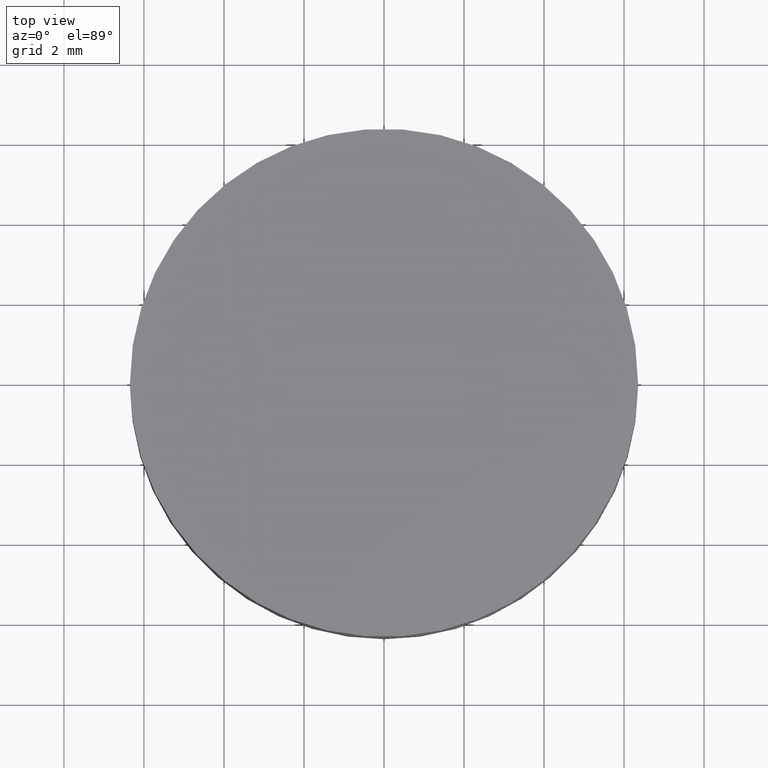
[diagram: clean part render]
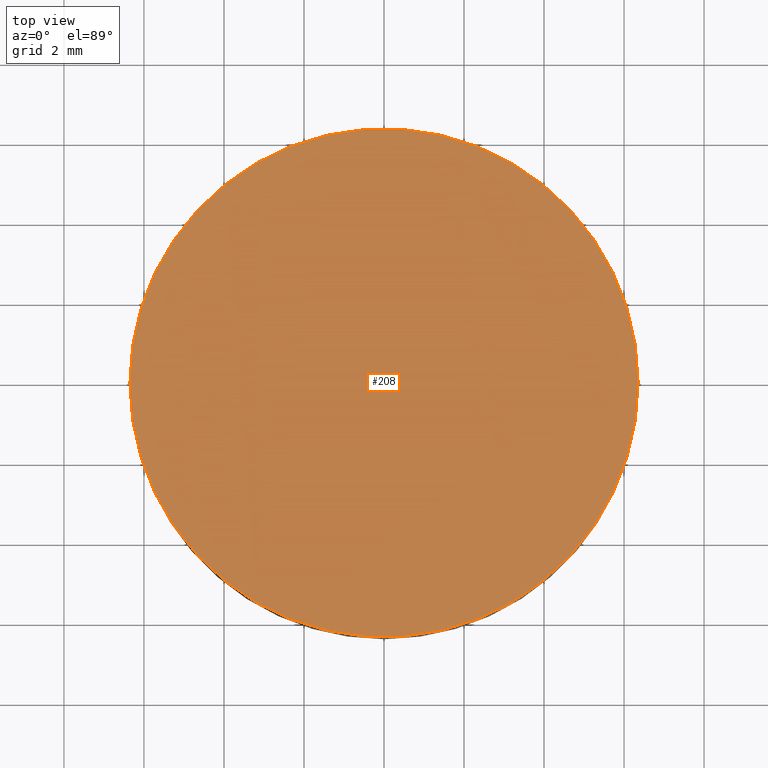
[diagram: same view with one face highlighted and labeled with its STEP entity id]
A machine part, top view. The second image highlights one B-rep face of the part: STEP entity #208.
In plain terms, the highlighted planar face has unit normal (0, 0, 1).
Its self-contained STEP definition (entity closure, byte-faithful):
#1 = ORIENTED_EDGE ( 'NONE', *, *, #120, .F. ) ;
#3 = ORIENTED_EDGE ( 'NONE', *, *, #49, .F. ) ;
#10 = CARTESIAN_POINT ( 'NONE',  ( 2.498001805406600200E-016, 1.221245327087670000E-015, 3.100000000000000500 ) ) ;
#11 = CIRCLE ( 'NONE', #129, 6.349999999999999600 ) ;
#49 = EDGE_CURVE ( 'NONE', #155, #85, #142, .T. ) ;
#68 = DIRECTION ( 'NONE',  ( 1.000000000000000000, 0.0000000000000000000, 0.0000000000000000000 ) ) ;
#74 = CARTESIAN_POINT ( 'NONE',  ( -6.349999999999999600, 1.998896044546239400E-015, 3.100000000000000500 ) ) ;
#85 = VERTEX_POINT ( 'NONE', #74 ) ;
#97 = DIRECTION ( 'NONE',  ( 1.000000000000000000, 0.0000000000000000000, -0.0000000000000000000 ) ) ;
#105 = AXIS2_PLACEMENT_3D ( 'NONE', #203, #176, #68 ) ;
#108 = AXIS2_PLACEMENT_3D ( 'NONE', #190, #191, #97 ) ;
#112 = DIRECTION ( 'NONE',  ( -0.0000000000000000000, -0.0000000000000000000, -1.000000000000000000 ) ) ;
#120 = EDGE_CURVE ( 'NONE', #85, #155, #11, .T. ) ;
#129 = AXIS2_PLACEMENT_3D ( 'NONE', #10, #112, #227 ) ;
#142 = CIRCLE ( 'NONE', #105, 6.349999999999999600 ) ;
#144 = FACE_OUTER_BOUND ( 'NONE', #196, .T. ) ;
#155 = VERTEX_POINT ( 'NONE', #161 ) ;
#161 = CARTESIAN_POINT ( 'NONE',  ( 6.349999999999999600, 1.221245327087670000E-015, 3.100000000000000500 ) ) ;
#168 = PLANE ( 'NONE',  #108 ) ;
#176 = DIRECTION ( 'NONE',  ( -0.0000000000000000000, -0.0000000000000000000, -1.000000000000000000 ) ) ;
#190 = CARTESIAN_POINT ( 'NONE',  ( 0.0000000000000000000, 13.15799999999999900, 3.100000000000000500 ) ) ;
#191 = DIRECTION ( 'NONE',  ( 0.0000000000000000000, 0.0000000000000000000, 1.000000000000000000 ) ) ;
#196 = EDGE_LOOP ( 'NONE', ( #3, #1 ) ) ;
#203 = CARTESIAN_POINT ( 'NONE',  ( 2.498001805406600200E-016, 1.221245327087670000E-015, 3.100000000000000500 ) ) ;
#208 = ADVANCED_FACE ( 'NONE', ( #144 ), #168, .T. ) ;
#227 = DIRECTION ( 'NONE',  ( 1.000000000000000000, 0.0000000000000000000, 0.0000000000000000000 ) ) ;